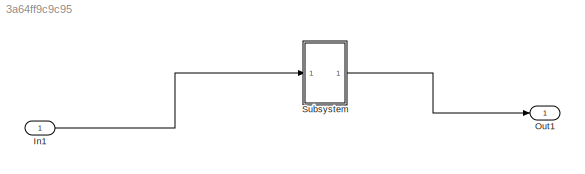
MODEL slx_3a64ff9c9c95
KIND model
CONFIG AbsTol = auto
CONFIG FixedStep = 1
CONFIG MaxStep = auto
CONFIG MinStep = auto
CONFIG RelTol = 1e-3
CONFIG SampleTimeConstraint = Unconstrained
CONFIG Solver = FixedStepDiscrete
CONFIG SolverMode = Auto
CONFIG SolverName = FixedStepDiscrete
CONFIG StartTime = 0.0
CONFIG StopTime = 100000
BLOCK [Inport] In1
  IconDisplay = Port number
BLOCK [Outport] Out1
  IconDisplay = Port number
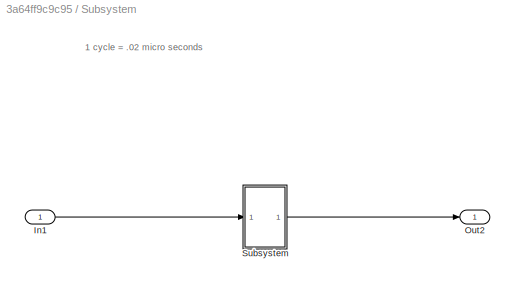
BLOCK [SubSystem] Subsystem
  Ports = [1, 1]
  RequestExecContextInheritance = off
  TreatAsAtomicUnit = on
BLOCK [Inport] Subsystem/In1
  IconDisplay = Port number
  SampleTime = 1
  VarSizeSig = No
BLOCK [Outport] Subsystem/Out2
  IconDisplay = Port number
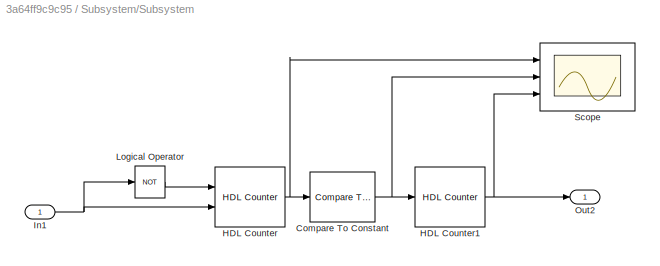
BLOCK [SubSystem] Subsystem/Subsystem
  Ports = [1, 1]
  RequestExecContextInheritance = off
  TreatAsAtomicUnit = on
BLOCK [Reference] Subsystem/Subsystem/Compare To Constant  REF=simulink/Logic and Bit
Operations/Compare
To Constant
  OutDataTypeStr = boolean
  Ports = [1, 1]
  SourceBlock = simulink/Logic and Bit\nOperations/Compare\nTo Constant
  SourceType = Compare To Constant
  ZeroCross = on
  const = 12500000
  relop = ==
BLOCK [Reference] Subsystem/Subsystem/HDL Counter  REF=hdlsllib/HDL Operations/HDL Counter
  CountDataType = Unsigned
  CountDirPort = off
  CountEnbPort = on
  CountFracLen = 0
  CountFrom = 0
  CountFromType = Initial value
  CountInit = 0
  CountLoadPort = off
  CountMax = 50000000
  CountResetPort = on
  CountSampTime = 1
  CountStep = 1
  CountType = Count limited
  CountWordLen = 32
  Ports = [2, 1]
  SourceBlock = hdlsllib/HDL Operations/HDL Counter
  SourceType = HDL Counter
BLOCK [Reference] Subsystem/Subsystem/HDL Counter1  REF=hdlsllib/HDL Operations/HDL Counter
  CountDataType = Unsigned
  CountDirPort = off
  CountEnbPort = on
  CountFracLen = 0
  CountFrom = 0
  CountFromType = Initial value
  CountInit = 0
  CountLoadPort = off
  CountMax = 100
  CountResetPort = off
  CountSampTime = 1
  CountStep = 1
  CountType = Free running
  CountWordLen = 1
  Ports = [1, 1]
  SourceBlock = hdlsllib/HDL Operations/HDL Counter
  SourceType = HDL Counter
BLOCK [Inport] Subsystem/Subsystem/In1
  IconDisplay = Port number
BLOCK [Logic] Subsystem/Subsystem/Logical Operator
  AllPortsSameDT = off
  IconShape = distinctive
  Operator = NOT
  OutDataTypeStr = boolean
  Ports = [1, 1]
BLOCK [Outport] Subsystem/Subsystem/Out2
  IconDisplay = Port number
BLOCK [Scope] Subsystem/Subsystem/Scope
  Floating = off
  NumInputPorts = 3
  Ports = [3]
  ShowLegends = off
ANNOTATION Subsystem: 1 cycle = .02 micro seconds
LINE In1:1 -> Subsystem:1
LINE Subsystem/In1:1 -> Subsystem/Subsystem:1
NET Subsystem/Subsystem/Compare To Constant:1 -> Subsystem/Subsystem/HDL Counter1:1, Subsystem/Subsystem/Scope:2
NET Subsystem/Subsystem/HDL Counter1:1 -> Subsystem/Subsystem/Out2:1, Subsystem/Subsystem/Scope:3
NET Subsystem/Subsystem/HDL Counter:1 -> Subsystem/Subsystem/Compare To Constant:1, Subsystem/Subsystem/Scope:1
NET Subsystem/Subsystem/In1:1 -> Subsystem/Subsystem/HDL Counter:2, Subsystem/Subsystem/Logical Operator:1
LINE Subsystem/Subsystem/Logical Operator:1 -> Subsystem/Subsystem/HDL Counter:1
LINE Subsystem/Subsystem:1 -> Subsystem/Out2:1
LINE Subsystem:1 -> Out1:1
note: NET lines group one-source signal fan-out (src -> all destinations, sorted); 1:1 wires keep LINE
